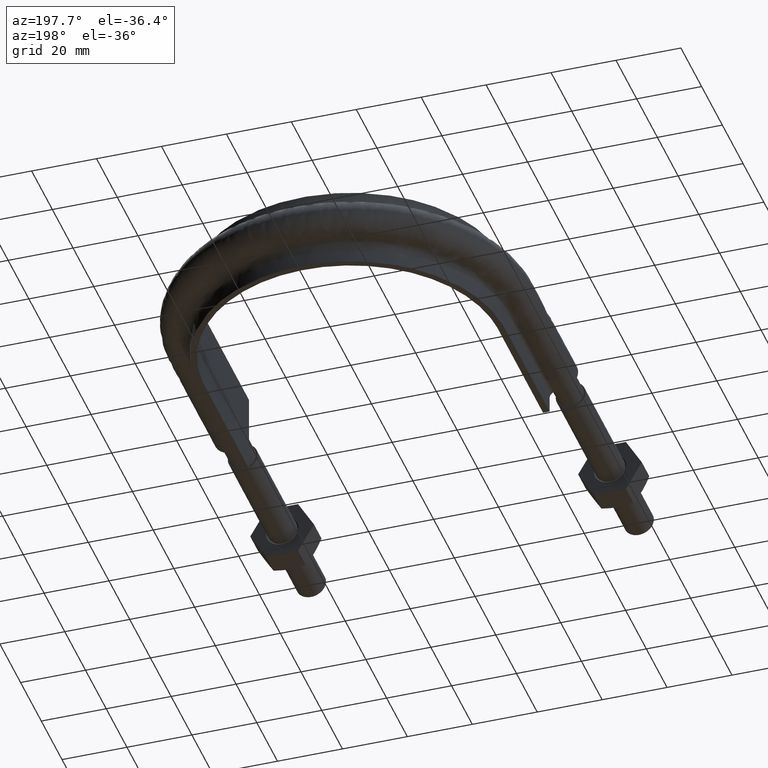
[diagram: clean part render]
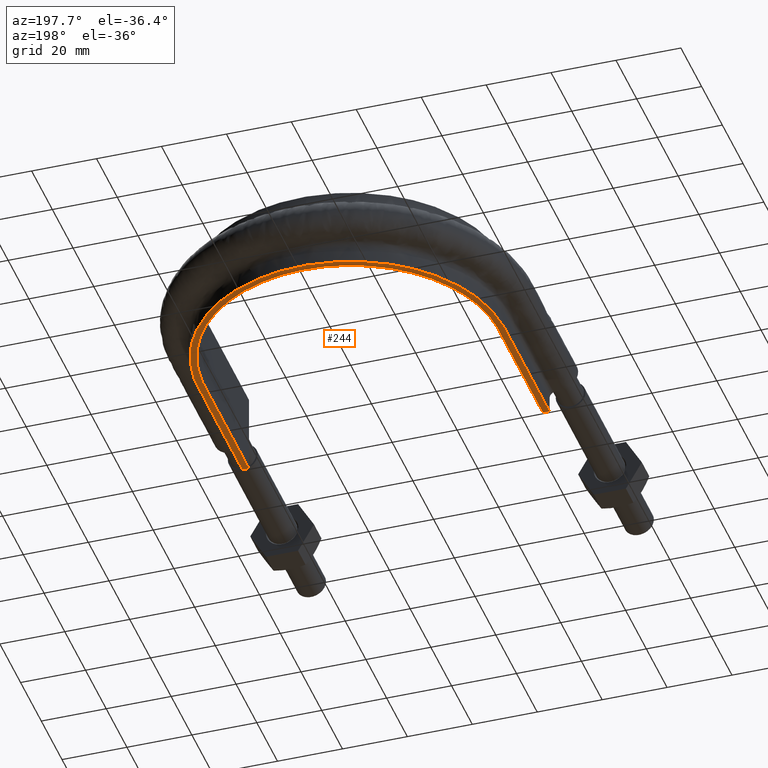
[diagram: same view with one face highlighted and labeled with its STEP entity id]
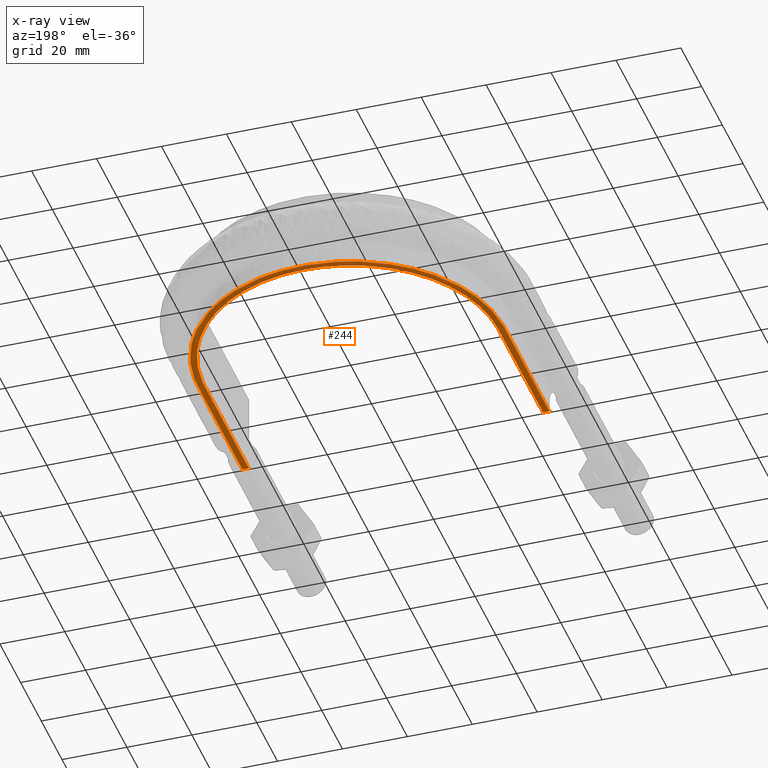
[diagram: x-ray of the same camera — body ghosted, the highlighted face saturated]
A machine part, auxiliary view. The second image highlights one B-rep face of the part: STEP entity #244.
The next image is the same camera in x-ray: the body ghosted, the highlighted face saturated — about 0% of this face is hidden behind the body in this view.
In plain terms, the highlighted planar face has unit normal (0, 0, 1).
Its self-contained STEP definition (entity closure, byte-faithful):
#244 = ADVANCED_FACE( '', ( #355 ), #356, .F. );
#355 = FACE_OUTER_BOUND( '', #845, .T. );
#356 = PLANE( '', #846 );
#845 = EDGE_LOOP( '', ( #1598, #1599, #1600, #1601 ) );
#846 = AXIS2_PLACEMENT_3D( '', #1602, #1603, #1604 );
#1598 = ORIENTED_EDGE( '', *, *, #2031, .F. );
#1599 = ORIENTED_EDGE( '', *, *, #2028, .F. );
#1600 = ORIENTED_EDGE( '', *, *, #2032, .F. );
#1601 = ORIENTED_EDGE( '', *, *, #2033, .F. );
#1602 = CARTESIAN_POINT( '', ( 60.0000000000000, 186.300000000000, -12.5000000000000 ) );
#1603 = DIRECTION( '', ( 0.000000000000000, 0.000000000000000, 1.00000000000000 ) );
#1604 = DIRECTION( '', ( 1.00000000000000, 0.000000000000000, 0.000000000000000 ) );
#2028 = EDGE_CURVE( '', #2202, #2198, #2204, .T. );
#2031 = EDGE_CURVE( '', #2198, #2209, #2210, .F. );
#2032 = EDGE_CURVE( '', #2211, #2202, #2212, .F. );
#2033 = EDGE_CURVE( '', #2209, #2211, #2213, .T. );
#2198 = VERTEX_POINT( '', #2490 );
#2202 = VERTEX_POINT( '', #2496 );
#2204 = LINE( '', #2528, #2529 );
#2209 = VERTEX_POINT( '', #2552 );
#2210 = B_SPLINE_CURVE_WITH_KNOTS( '', 3, ( #2553, #2554, #2555, #2556, #2557, #2558, #2559, #2560, #2561, #2562, #2563, #2564, #2565, #2566, #2567, #2568 ), .UNSPECIFIED., .F., .F., ( 4, 3, 1, 1, 1, 1, 1, 1, 3, 4 ), ( -8.93133047210300, -8.00000000000000, -7.00000000000000, -6.00000000000000, -5.00000000000000, -4.00000000000000, -3.00000000000000, -2.00000000000000, -1.00000000000000, -0.0686695278969956 ), .UNSPECIFIED. );
#2211 = VERTEX_POINT( '', #2569 );
#2212 = B_SPLINE_CURVE_WITH_KNOTS( '', 3, ( #2570, #2571, #2572, #2573, #2574, #2575, #2576, #2577, #2578, #2579, #2580, #2581, #2582, #2583, #2584, #2585 ), .UNSPECIFIED., .F., .F., ( 4, 3, 1, 1, 1, 1, 1, 1, 3, 4 ), ( 0.0686695278969954, 1.00000000000000, 2.00000000000000, 3.00000000000000, 4.00000000000000, 5.00000000000000, 6.00000000000000, 7.00000000000000, 8.00000000000000, 8.93133047210300 ), .UNSPECIFIED. );
#2213 = LINE( '', #2586, #2587 );
#2490 = CARTESIAN_POINT( '', ( -45.3000000000000, 76.3000000000000, -12.5000000000000 ) );
#2496 = CARTESIAN_POINT( '', ( -47.3000000000000, 76.3000000000000, -12.5000000000000 ) );
#2528 = CARTESIAN_POINT( '', ( -60.0000000000000, 76.3000000000000, -12.5000000000000 ) );
#2529 = VECTOR( '', #3115, 1000.00000000000 );
#2552 = CARTESIAN_POINT( '', ( 45.3000000000000, 76.3000000000000, -12.5000000000000 ) );
#2553 = CARTESIAN_POINT( '', ( 45.3000000000000, 76.3000000000000, -12.5000000000000 ) );
#2554 = CARTESIAN_POINT( '', ( 45.3000000000000, 90.7666666666667, -12.5000000000000 ) );
#2555 = CARTESIAN_POINT( '', ( 45.3000000000000, 105.233333333333, -12.5000000000000 ) );
#2556 = CARTESIAN_POINT( '', ( 45.3000000000000, 119.700000000000, -12.5000000000000 ) );
#2557 = CARTESIAN_POINT( '', ( 45.3000000000000, 126.461794206864, -12.5000000000000 ) );
#2558 = CARTESIAN_POINT( '', ( 42.2071641315033, 140.032157601825, -12.5000000000000 ) );
#2559 = CARTESIAN_POINT( '', ( 29.2082638356160, 156.324357375469, -12.5000000000000 ) );
#2560 = CARTESIAN_POINT( '', ( 10.4243086712368, 165.372209831110, -12.5000000000000 ) );
#2561 = CARTESIAN_POINT( '', ( -10.4243086712367, 165.372209831110, -12.5000000000000 ) );
#2562 = CARTESIAN_POINT( '', ( -29.2082638356159, 156.324357375469, -12.5000000000000 ) );
#2563 = CARTESIAN_POINT( '', ( -42.2071641315033, 140.032157601825, -12.5000000000000 ) );
#2564 = CARTESIAN_POINT( '', ( -45.3000000000000, 126.461794206864, -12.5000000000000 ) );
#2565 = CARTESIAN_POINT( '', ( -45.3000000000000, 119.700000000000, -12.5000000000000 ) );
#2566 = CARTESIAN_POINT( '', ( -45.3000000000000, 105.233333333333, -12.5000000000000 ) );
#2567 = CARTESIAN_POINT( '', ( -45.3000000000000, 90.7666666666667, -12.5000000000000 ) );
#2568 = CARTESIAN_POINT( '', ( -45.3000000000000, 76.3000000000000, -12.5000000000000 ) );
#2569 = CARTESIAN_POINT( '', ( 47.3000000000000, 76.3000000000000, -12.5000000000000 ) );
#2570 = CARTESIAN_POINT( '', ( -47.3000000000000, 76.3000000000000, -12.5000000000000 ) );
#2571 = CARTESIAN_POINT( '', ( -47.3000000000000, 90.7666666666668, -12.5000000000000 ) );
#2572 = CARTESIAN_POINT( '', ( -47.3000000000000, 105.233333333334, -12.5000000000000 ) );
#2573 = CARTESIAN_POINT( '', ( -47.3000000000000, 119.700000000000, -12.5000000000000 ) );
#2574 = CARTESIAN_POINT( '', ( -47.3000000000000, 126.766118839385, -12.5000000000000 ) );
#2575 = CARTESIAN_POINT( '', ( -44.0706150865365, 140.927141121989, -12.5000000000000 ) );
#2576 = CARTESIAN_POINT( '', ( -30.4978119078285, 157.942032975526, -12.5000000000000 ) );
#2577 = CARTESIAN_POINT( '', ( -10.8845430496578, 167.388501700335, -12.5000000000000 ) );
#2578 = CARTESIAN_POINT( '', ( 10.8845430496579, 167.388501700335, -12.5000000000000 ) );
#2579 = CARTESIAN_POINT( '', ( 30.4978119078286, 157.942032975526, -12.5000000000000 ) );
#2580 = CARTESIAN_POINT( '', ( 44.0706150865366, 140.927141121989, -12.5000000000000 ) );
#2581 = CARTESIAN_POINT( '', ( 47.3000000000000, 126.766118839385, -12.5000000000000 ) );
#2582 = CARTESIAN_POINT( '', ( 47.3000000000000, 119.700000000000, -12.5000000000000 ) );
#2583 = CARTESIAN_POINT( '', ( 47.3000000000000, 105.233333333334, -12.5000000000000 ) );
#2584 = CARTESIAN_POINT( '', ( 47.3000000000000, 90.7666666666667, -12.5000000000000 ) );
#2585 = CARTESIAN_POINT( '', ( 47.3000000000000, 76.3000000000000, -12.5000000000000 ) );
#2586 = CARTESIAN_POINT( '', ( -60.0000000000000, 76.3000000000000, -12.5000000000000 ) );
#2587 = VECTOR( '', #3116, 1000.00000000000 );
#3115 = DIRECTION( '', ( 1.00000000000000, -2.75411799042744E-080, 0.000000000000000 ) );
#3116 = DIRECTION( '', ( 1.00000000000000, -2.75411799042744E-080, 0.000000000000000 ) );